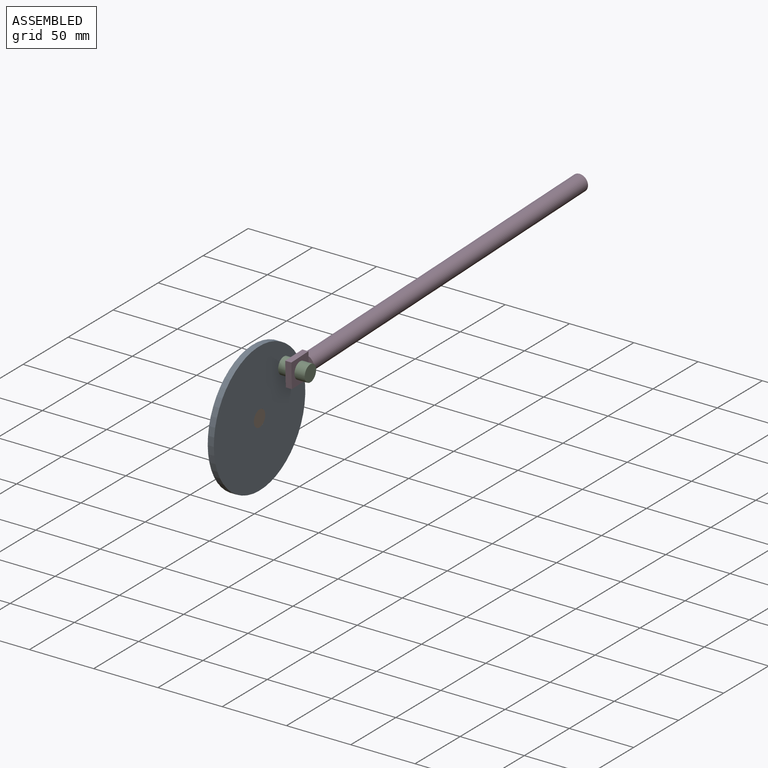
[diagram: assembled view]
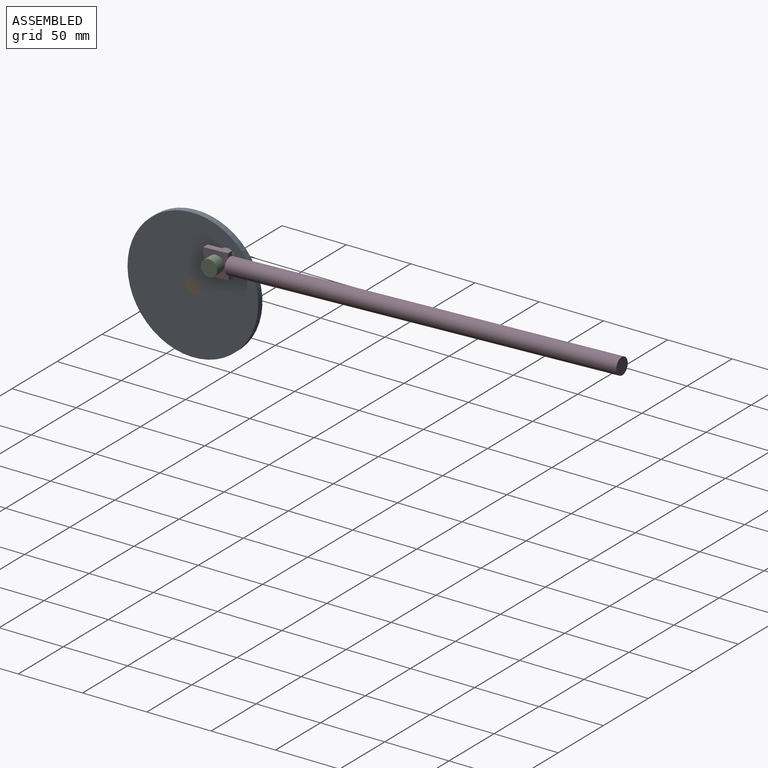
[diagram: assembled view, second angle]
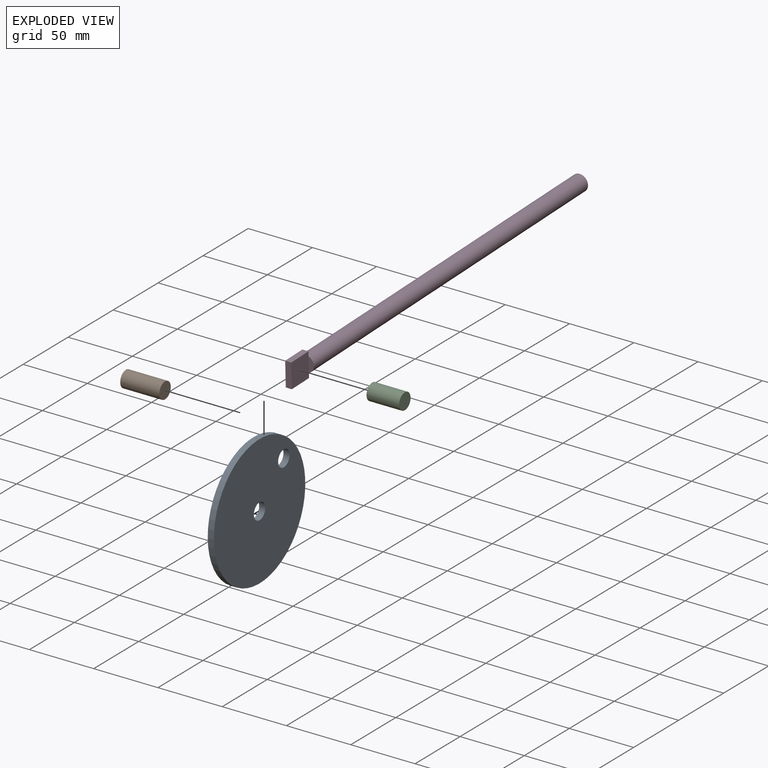
[diagram: exploded view]
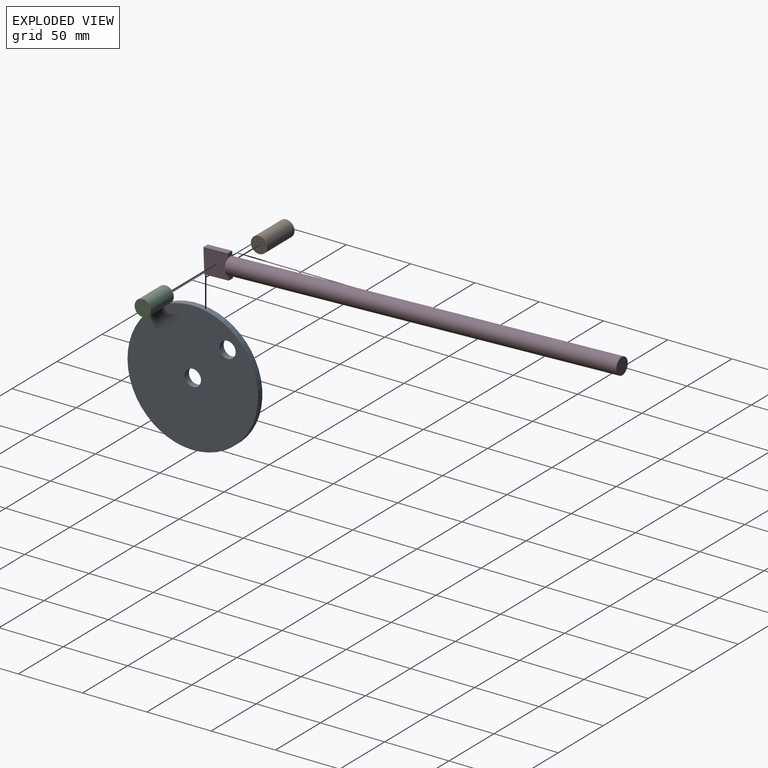
[diagram: exploded view, second angle]
ASSEMBLY  parts=4 mates=3
PART A: 5 faces, bbox 4.8x101.6x101.6 mm
  f0: cylinder r=6.35mm len=12.7mm, axis (-1,0,0), area 190mm2, adj f3,f4
  f1: cylinder r=6.35mm len=12.7mm, axis (-1,0,0), area 190mm2, adj f3,f4
  f2: cylinder r=50.8mm len=101.6mm, axis (-1,0,0), area 1520.1mm2, adj f3,f4
  f3: plane 101.6x101.6mm, normal (1,0,0), area 7854mm2, adj f0,f1,f2
  f4: plane 101.6x101.6mm, normal (-1,0,0), area 7854mm2, adj f0,f1,f2
PART B: 3 faces, bbox 30.5x12.7x12.7 mm
  f0: cylinder r=6.35mm len=30.48mm, axis (1,0,0), area 1216.1mm2, adj f1,f2
  f1: plane 12.7x12.7mm, normal (-1,0,0), area 126.7mm2, adj f0
  f2: plane 12.7x12.7mm, normal (1,0,0), area 126.7mm2, adj f0
PART C: 3 faces, bbox 25.4x12.7x12.7 mm
  f0: cylinder r=6.35mm len=25.4mm, axis (-1,0,0), area 1013.4mm2, adj f1,f2
  f1: plane 12.7x12.7mm, normal (1,0,0), area 126.7mm2, adj f0
  f2: plane 12.7x12.7mm, normal (-1,0,0), area 126.7mm2, adj f0
PART D: 11 faces, bbox 12.7x323.9x19.1 mm
  f0: plane 4.76x3.64mm, normal (0,1,0), area 15.8mm2, adj f2,f5,f6,f8
  f1: plane 4.76x3.64mm, normal (0,1,0), area 15.8mm2, adj f4,f5,f6,f8
  f2: plane 19.05x4.76mm, normal (0,0,1), area 90.7mm2, adj f0,f3,f5,f6
  f3: plane 19.05x4.76mm, normal (0,-1,0), area 90.7mm2, adj f2,f4,f5,f6
  f4: plane 19.05x4.76mm, normal (0,0,-1), area 90.7mm2, adj f1,f3,f5,f6
  f5: plane 19.05x19.05mm, normal (1,0,0), area 362.9mm2, adj f0,f1,f2,f3,f4,f7
  f6: plane 19.05x19.05mm, normal (-1,0,0), area 362.9mm2, adj f0,f1,f2,f3,f4,f10
  f7: plane 11.77x3.97mm, normal (0,-1,0), area 33.8mm2, adj f5,f8
  f8: cylinder r=6.35mm len=304.8mm, axis (0,-1,0), area 12161mm2, adj f0,f1,f7,f9,f10
  f9: plane 12.7x12.7mm, normal (0,1,0), area 126.7mm2, adj f8
  f10: plane 11.77x3.97mm, normal (0,-1,0), area 33.8mm2, adj f6,f8
PLACE A rot(axis=(-1,0,0),45.1deg) t=(15.73,-94.94,41.88)mm
PLACE B t=(15.41,-94.94,41.88)mm fixed
PLACE C t=(15.73,-67.95,30.67)mm
PLACE D rot(axis=(1,0,0),2deg) t=(15.73,-66.59,30.51)mm
MATE revolute D.f6 <-> C.f0  axis (-1,0,0) through (28.43,-67.95,68.77)mm
MATE revolute A.f1 <-> B.f0  axis (-1,0,0) through (20.49,-94.94,41.88)mm
MATE revolute A.f0 <-> C.f0  axis (-1,0,0) through (15.73,-67.95,68.77)mm
